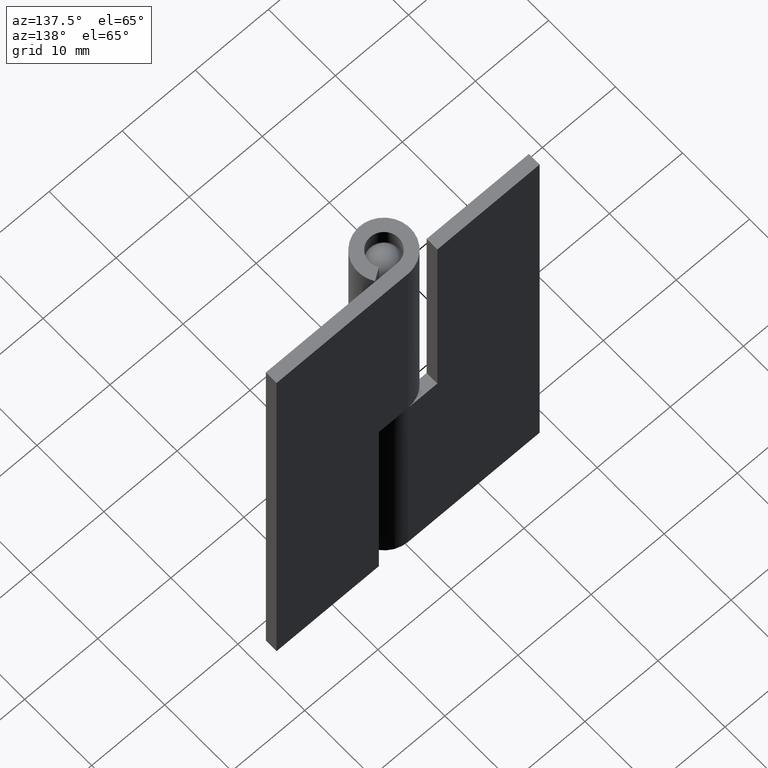
[diagram: clean part render]
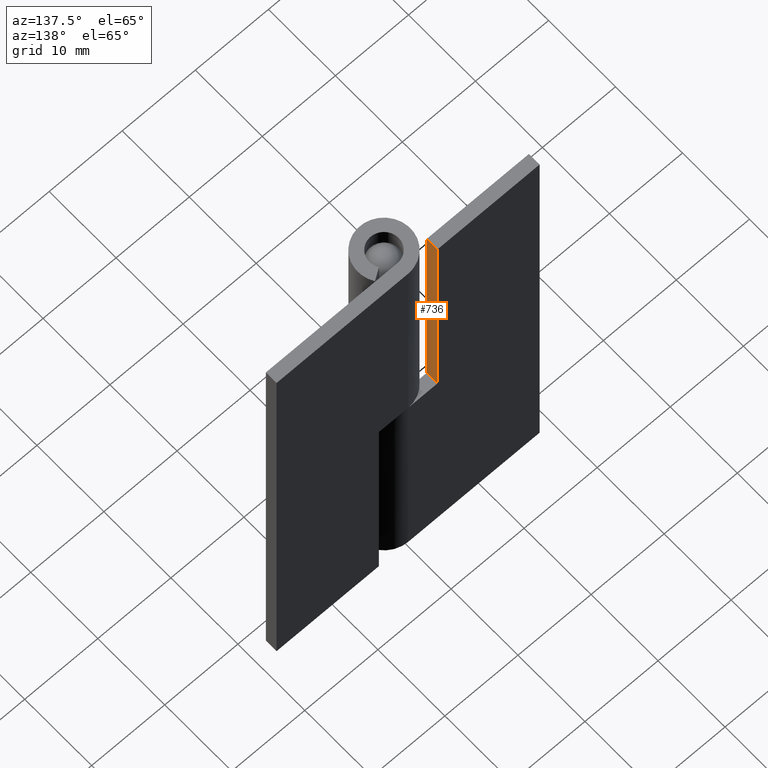
[diagram: same view with one face highlighted and labeled with its STEP entity id]
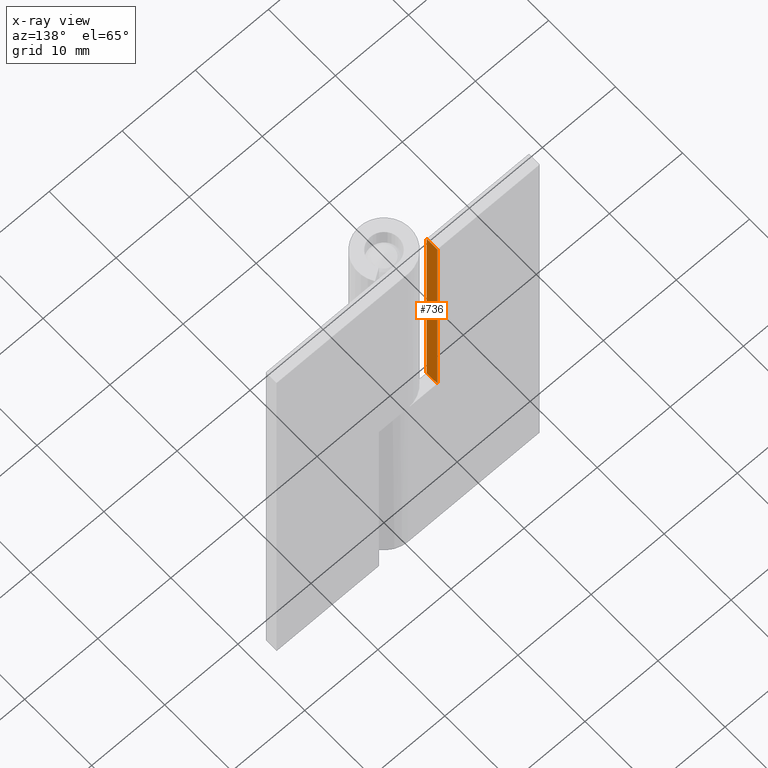
[diagram: x-ray of the same camera — body ghosted, the highlighted face saturated]
A machine part, auxiliary view. The second image highlights one B-rep face of the part: STEP entity #736.
The next image is the same camera in x-ray: the body ghosted, the highlighted face saturated — about 0% of this face is hidden behind the body in this view.
In plain terms, the highlighted face is a freeform B-spline surface patch.
Its self-contained STEP definition (entity closure, byte-faithful):
#701=CARTESIAN_POINT('',(-4.000000000000045,1.920080103001107,65.598407637584785));
#702=CARTESIAN_POINT('',(-4.000000000000045,1.920080103001107,30.401607218006191));
#703=CARTESIAN_POINT('',(-4.000000000000045,3.679917939914185,65.598407637584785));
#704=CARTESIAN_POINT('',(-4.000000000000045,3.679917939914185,30.401607218006191));
#705=B_SPLINE_SURFACE_WITH_KNOTS('',1,1,((#701,#703),(#702,#704)),.UNSPECIFIED.,.F.,.F.,.U.,(2,2),(2,2),(0.0,35.196800419578587),(0.041708334948495,0.958291687403247),.UNSPECIFIED.);
#706=CARTESIAN_POINT('',(-4.000000000000045,3.599998000000000,32.000008000000051));
#707=VERTEX_POINT('',#706);
#708=CARTESIAN_POINT('',(-4.000000000000045,2.0,32.000008000000051));
#709=VERTEX_POINT('',#708);
#710=CARTESIAN_POINT('',(-4.000000000000045,3.599998000000000,32.000008000000051));
#711=CARTESIAN_POINT('',(-4.000000000000045,2.0,32.000008000000051));
#712=QUASI_UNIFORM_CURVE('',1,(#710,#711),.UNSPECIFIED.,.F.,.U.);
#713=EDGE_CURVE('',#707,#709,#712,.T.);
#714=ORIENTED_EDGE('',*,*,#713,.F.);
#715=CARTESIAN_POINT('',(-4.000000000000045,3.599998000000000,64.000008000000093));
#716=VERTEX_POINT('',#715);
#717=CARTESIAN_POINT('',(-4.000000000000045,3.599998000000000,32.000008000000051));
#718=CARTESIAN_POINT('',(-4.000000000000045,3.599998000000000,64.000008000000093));
#719=QUASI_UNIFORM_CURVE('',1,(#717,#718),.UNSPECIFIED.,.F.,.U.);
#720=EDGE_CURVE('',#707,#716,#719,.T.);
#721=ORIENTED_EDGE('',*,*,#720,.T.);
#722=CARTESIAN_POINT('',(-4.000000000000045,2.0,64.000007999999994));
#723=VERTEX_POINT('',#722);
#724=CARTESIAN_POINT('',(-4.000000000000045,3.599998000000000,64.000008000000093));
#725=CARTESIAN_POINT('',(-4.000000000000045,2.0,64.000007999999994));
#726=QUASI_UNIFORM_CURVE('',1,(#724,#725),.UNSPECIFIED.,.F.,.U.);
#727=EDGE_CURVE('',#716,#723,#726,.T.);
#728=ORIENTED_EDGE('',*,*,#727,.T.);
#729=CARTESIAN_POINT('',(-4.000000000000045,2.0,32.000008000000051));
#730=CARTESIAN_POINT('',(-4.000000000000045,2.0,64.000007999999994));
#731=QUASI_UNIFORM_CURVE('',1,(#729,#730),.UNSPECIFIED.,.F.,.U.);
#732=EDGE_CURVE('',#709,#723,#731,.T.);
#733=ORIENTED_EDGE('',*,*,#732,.F.);
#734=EDGE_LOOP('',(#714,#721,#728,#733));
#735=FACE_OUTER_BOUND('',#734,.T.);
#736=ADVANCED_FACE('',(#735),#705,.T.);